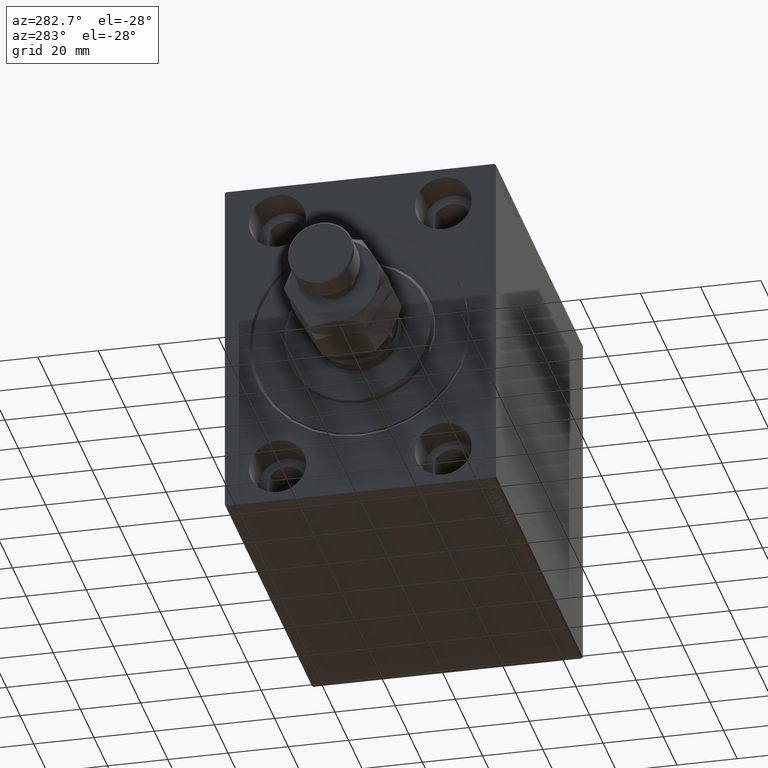
[diagram: clean part render]
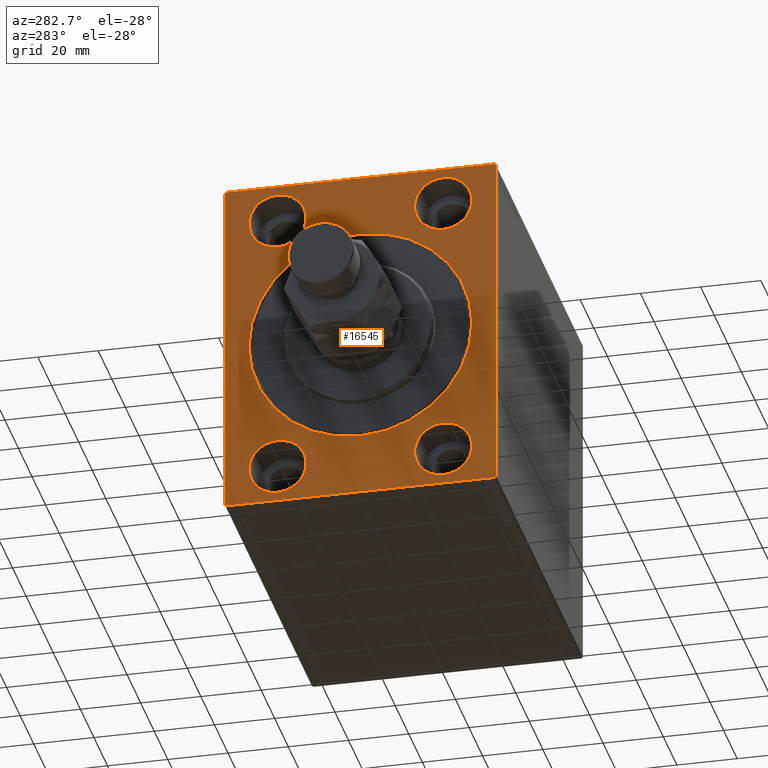
[diagram: same view with one face highlighted and labeled with its STEP entity id]
A machine part, auxiliary view. The second image highlights one B-rep face of the part: STEP entity #16545.
In plain terms, the highlighted planar face has unit normal (1, 0, 0).
Its self-contained STEP definition (entity closure, byte-faithful):
#292 = AXIS2_PLACEMENT_3D ( 'NONE', #9441, #20272, #23465 ) ;
#470 = EDGE_LOOP ( 'NONE', ( #8806, #19407 ) ) ;
#543 = DIRECTION ( 'NONE',  ( -1.000000000000000000, 0.000000000000000000, 0.000000000000000000 ) ) ;
#783 = VECTOR ( 'NONE', #28798, 1000.000000000000000 ) ;
#882 = EDGE_CURVE ( 'NONE', #24466, #17183, #27310, .T. ) ;
#917 = CIRCLE ( 'NONE', #33952, 37.00000000000000711 ) ;
#956 = LINE ( 'NONE', #39339, #783 ) ;
#1502 = DIRECTION ( 'NONE',  ( 1.000000000000000000, 0.000000000000000000, 0.000000000000000000 ) ) ;
#1804 = CARTESIAN_POINT ( 'NONE',  ( 0.000000000000000000, 44.50000000000000000, 57.50000000000000711 ) ) ;
#1849 = CARTESIAN_POINT ( 'NONE',  ( 0.000000000000000000, -27.50000000000000000, -44.99999999999998579 ) ) ;
#2384 = CARTESIAN_POINT ( 'NONE',  ( 0.000000000000000000, 27.50000000000001066, 54.50000000000000711 ) ) ;
#2912 = DIRECTION ( 'NONE',  ( 0.000000000000000000, -0.7071067811865279218, -0.7071067811865671127 ) ) ;
#3373 = CARTESIAN_POINT ( 'NONE',  ( 0.000000000000000000, 45.00000000000001421, -57.00000000000000711 ) ) ;
#3547 = DIRECTION ( 'NONE',  ( 0.000000000000000000, 0.000000000000000000, 1.000000000000000000 ) ) ;
#3865 = CARTESIAN_POINT ( 'NONE',  ( 0.000000000000000000, -45.00000000000000000, -57.50000000000000711 ) ) ;
#4017 = EDGE_CURVE ( 'NONE', #22240, #43699, #12164, .T. ) ;
#4307 = EDGE_LOOP ( 'NONE', ( #22236, #33594, #11161, #6860, #18402, #30886, #10931, #40392 ) ) ;
#4416 = EDGE_CURVE ( 'NONE', #22240, #37407, #956, .T. ) ;
#4546 = VECTOR ( 'NONE', #32942, 1000.000000000000114 ) ;
#4625 = DIRECTION ( 'NONE',  ( 0.000000000000000000, 0.000000000000000000, 1.000000000000000000 ) ) ;
#4808 = DIRECTION ( 'NONE',  ( -0.000000000000000000, 0.7071067811865671127, -0.7071067811865279218 ) ) ;
#5955 = EDGE_LOOP ( 'NONE', ( #21934, #21179 ) ) ;
#6246 = EDGE_LOOP ( 'NONE', ( #7200, #30012 ) ) ;
#6381 = PLANE ( 'NONE',  #32591 ) ;
#6445 = EDGE_CURVE ( 'NONE', #33342, #26169, #35341, .T. ) ;
#6840 = FACE_OUTER_BOUND ( 'NONE', #4307, .T. ) ;
#6860 = ORIENTED_EDGE ( 'NONE', *, *, #4017, .T. ) ;
#7200 = ORIENTED_EDGE ( 'NONE', *, *, #18276, .F. ) ;
#8005 = DIRECTION ( 'NONE',  ( -1.000000000000000000, 0.000000000000000000, 0.000000000000000000 ) ) ;
#8131 = CARTESIAN_POINT ( 'NONE',  ( 0.000000000000000000, -45.00000000000000000, 56.99999999999999289 ) ) ;
#8173 = EDGE_CURVE ( 'NONE', #24466, #27444, #35355, .T. ) ;
#8791 = VERTEX_POINT ( 'NONE', #28817 ) ;
#8806 = ORIENTED_EDGE ( 'NONE', *, *, #9933, .F. ) ;
#8908 = CARTESIAN_POINT ( 'NONE',  ( 0.000000000000000000, 27.49999999999998934, -54.49999999999998579 ) ) ;
#8916 = VECTOR ( 'NONE', #23629, 1000.000000000000000 ) ;
#8939 = CIRCLE ( 'NONE', #22133, 9.500000000000001776 ) ;
#9027 = CARTESIAN_POINT ( 'NONE',  ( 0.000000000000000000, 27.50000000000001066, 45.00000000000000711 ) ) ;
#9386 = CIRCLE ( 'NONE', #36526, 37.00000000000000711 ) ;
#9441 = CARTESIAN_POINT ( 'NONE',  ( 0.000000000000000000, -27.50000000000000000, -44.99999999999998579 ) ) ;
#9910 = CARTESIAN_POINT ( 'NONE',  ( 0.000000000000000000, -27.50000000000000000, -54.49999999999998579 ) ) ;
#9933 = EDGE_CURVE ( 'NONE', #28563, #44683, #44131, .T. ) ;
#10086 = EDGE_CURVE ( 'NONE', #10747, #23612, #8939, .T. ) ;
#10318 = DIRECTION ( 'NONE',  ( 0.000000000000000000, 1.000000000000000000, 0.000000000000000000 ) ) ;
#10747 = VERTEX_POINT ( 'NONE', #8908 ) ;
#10931 = ORIENTED_EDGE ( 'NONE', *, *, #8173, .F. ) ;
#11161 = ORIENTED_EDGE ( 'NONE', *, *, #4416, .F. ) ;
#11743 = DIRECTION ( 'NONE',  ( -1.000000000000000000, 0.000000000000000000, 0.000000000000000000 ) ) ;
#12164 = LINE ( 'NONE', #1804, #16971 ) ;
#12219 = CARTESIAN_POINT ( 'NONE',  ( 0.000000000000000000, 45.00000000000000000, 57.00000000000000711 ) ) ;
#13038 = CARTESIAN_POINT ( 'NONE',  ( 0.000000000000000000, 45.00000000000001421, -57.50000000000000711 ) ) ;
#13501 = FACE_BOUND ( 'NONE', #5955, .T. ) ;
#13992 = CARTESIAN_POINT ( 'NONE',  ( 0.000000000000000000, 44.50000000000000000, 57.50000000000000711 ) ) ;
#14154 = VERTEX_POINT ( 'NONE', #9910 ) ;
#14888 = ORIENTED_EDGE ( 'NONE', *, *, #42539, .T. ) ;
#15895 = DIRECTION ( 'NONE',  ( -1.000000000000000000, 0.000000000000000000, 0.000000000000000000 ) ) ;
#16280 = AXIS2_PLACEMENT_3D ( 'NONE', #9027, #26040, #43948 ) ;
#16320 = VERTEX_POINT ( 'NONE', #41630 ) ;
#16473 = EDGE_CURVE ( 'NONE', #16320, #27444, #30974, .T. ) ;
#16545 = ADVANCED_FACE ( 'NONE', ( #24302, #13501, #34409, #37857, #38307, #6840 ), #6381, .F. ) ;
#16971 = VECTOR ( 'NONE', #4808, 1000.000000000000000 ) ;
#17183 = VERTEX_POINT ( 'NONE', #21436 ) ;
#17197 = VECTOR ( 'NONE', #2912, 1000.000000000000000 ) ;
#17318 = CARTESIAN_POINT ( 'NONE',  ( 0.000000000000000000, -44.50000000000002842, -57.50000000000000711 ) ) ;
#17957 = CARTESIAN_POINT ( 'NONE',  ( 0.000000000000000000, -44.49999999999997158, 57.49999999999999289 ) ) ;
#17962 = CARTESIAN_POINT ( 'NONE',  ( 0.000000000000000000, -27.49999999999998934, 35.50000000000000711 ) ) ;
#18276 = EDGE_CURVE ( 'NONE', #41745, #14154, #31874, .T. ) ;
#18402 = ORIENTED_EDGE ( 'NONE', *, *, #37951, .F. ) ;
#19407 = ORIENTED_EDGE ( 'NONE', *, *, #35605, .F. ) ;
#19759 = EDGE_LOOP ( 'NONE', ( #14888, #45524 ) ) ;
#20245 = CARTESIAN_POINT ( 'NONE',  ( 0.000000000000000000, 27.49999999999998934, -44.99999999999998579 ) ) ;
#20272 = DIRECTION ( 'NONE',  ( -1.000000000000000000, 0.000000000000000000, 0.000000000000000000 ) ) ;
#20357 = CARTESIAN_POINT ( 'NONE',  ( 0.000000000000000000, -45.00000000000000000, 57.49999999999999289 ) ) ;
#20486 = CARTESIAN_POINT ( 'NONE',  ( 0.000000000000000000, -27.49999999999998934, 45.00000000000000711 ) ) ;
#20882 = DIRECTION ( 'NONE',  ( 1.000000000000000000, 0.000000000000000000, 0.000000000000000000 ) ) ;
#21164 = DIRECTION ( 'NONE',  ( -1.000000000000000000, 0.000000000000000000, 0.000000000000000000 ) ) ;
#21179 = ORIENTED_EDGE ( 'NONE', *, *, #10086, .F. ) ;
#21377 = VECTOR ( 'NONE', #41464, 1000.000000000000000 ) ;
#21436 = CARTESIAN_POINT ( 'NONE',  ( 0.000000000000000000, -45.00000000000000000, -57.00000000000003553 ) ) ;
#21598 = DIRECTION ( 'NONE',  ( 0.000000000000000000, 0.000000000000000000, 1.000000000000000000 ) ) ;
#21934 = ORIENTED_EDGE ( 'NONE', *, *, #22280, .F. ) ;
#21997 = DIRECTION ( 'NONE',  ( 1.000000000000000000, 0.000000000000000000, 0.000000000000000000 ) ) ;
#22133 = AXIS2_PLACEMENT_3D ( 'NONE', #24934, #543, #3547 ) ;
#22236 = ORIENTED_EDGE ( 'NONE', *, *, #33702, .F. ) ;
#22240 = VERTEX_POINT ( 'NONE', #13992 ) ;
#22280 = EDGE_CURVE ( 'NONE', #23612, #10747, #34314, .T. ) ;
#22461 = CARTESIAN_POINT ( 'NONE',  ( 0.000000000000000000, 0.000000000000000000, 0.000000000000000000 ) ) ;
#22679 = DIRECTION ( 'NONE',  ( 0.000000000000000000, 0.000000000000000000, -1.000000000000000000 ) ) ;
#22933 = CARTESIAN_POINT ( 'NONE',  ( 0.000000000000000000, 0.000000000000000000, 37.00000000000000711 ) ) ;
#23391 = DIRECTION ( 'NONE',  ( 0.000000000000000000, 0.000000000000000000, -1.000000000000000000 ) ) ;
#23465 = DIRECTION ( 'NONE',  ( 0.000000000000000000, 0.000000000000000000, 1.000000000000000000 ) ) ;
#23528 = ORIENTED_EDGE ( 'NONE', *, *, #34731, .F. ) ;
#23612 = VERTEX_POINT ( 'NONE', #27000 ) ;
#23629 = DIRECTION ( 'NONE',  ( 0.000000000000000000, -1.206764157201257045E-16, 1.000000000000000000 ) ) ;
#24302 = FACE_BOUND ( 'NONE', #19759, .T. ) ;
#24364 = EDGE_CURVE ( 'NONE', #29785, #45123, #9386, .T. ) ;
#24466 = VERTEX_POINT ( 'NONE', #17318 ) ;
#24574 = DIRECTION ( 'NONE',  ( 0.000000000000000000, 0.000000000000000000, 1.000000000000000000 ) ) ;
#24934 = CARTESIAN_POINT ( 'NONE',  ( 0.000000000000000000, 27.49999999999998934, -44.99999999999998579 ) ) ;
#25219 = CARTESIAN_POINT ( 'NONE',  ( 0.000000000000000000, -27.50000000000000000, -35.49999999999998579 ) ) ;
#25724 = VECTOR ( 'NONE', #10318, 1000.000000000000000 ) ;
#26040 = DIRECTION ( 'NONE',  ( -1.000000000000000000, 0.000000000000000000, 0.000000000000000000 ) ) ;
#26169 = VERTEX_POINT ( 'NONE', #2384 ) ;
#26270 = CARTESIAN_POINT ( 'NONE',  ( 0.000000000000000000, 0.000000000000000000, 0.000000000000000000 ) ) ;
#27000 = CARTESIAN_POINT ( 'NONE',  ( 0.000000000000000000, 27.49999999999998934, -35.49999999999998579 ) ) ;
#27310 = LINE ( 'NONE', #38088, #30801 ) ;
#27444 = VERTEX_POINT ( 'NONE', #29096 ) ;
#27529 = CARTESIAN_POINT ( 'NONE',  ( 0.000000000000000000, 0.000000000000000000, 0.000000000000000000 ) ) ;
#28563 = VERTEX_POINT ( 'NONE', #33165 ) ;
#28798 = DIRECTION ( 'NONE',  ( 0.000000000000000000, -1.000000000000000000, -1.541976423090495387E-16 ) ) ;
#28817 = CARTESIAN_POINT ( 'NONE',  ( 0.000000000000000000, -45.00000000000000000, 56.99999999999999289 ) ) ;
#28931 = CARTESIAN_POINT ( 'NONE',  ( 0.000000000000000000, 27.50000000000001066, 45.00000000000000711 ) ) ;
#29096 = CARTESIAN_POINT ( 'NONE',  ( 0.000000000000000000, 44.50000000000001421, -57.50000000000000711 ) ) ;
#29478 = AXIS2_PLACEMENT_3D ( 'NONE', #36331, #11743, #4625 ) ;
#29511 = AXIS2_PLACEMENT_3D ( 'NONE', #1849, #15895, #29899 ) ;
#29785 = VERTEX_POINT ( 'NONE', #33483 ) ;
#29899 = DIRECTION ( 'NONE',  ( 0.000000000000000000, 0.000000000000000000, 1.000000000000000000 ) ) ;
#30012 = ORIENTED_EDGE ( 'NONE', *, *, #40536, .F. ) ;
#30505 = LINE ( 'NONE', #13038, #8916 ) ;
#30668 = LINE ( 'NONE', #20357, #21377 ) ;
#30801 = VECTOR ( 'NONE', #34659, 1000.000000000000114 ) ;
#30886 = ORIENTED_EDGE ( 'NONE', *, *, #16473, .T. ) ;
#30964 = CARTESIAN_POINT ( 'NONE',  ( 0.000000000000000000, 27.50000000000001066, 35.50000000000000711 ) ) ;
#30974 = LINE ( 'NONE', #3373, #17197 ) ;
#31874 = CIRCLE ( 'NONE', #292, 9.500000000000001776 ) ;
#32591 = AXIS2_PLACEMENT_3D ( 'NONE', #27529, #20882, #23391 ) ;
#32901 = ORIENTED_EDGE ( 'NONE', *, *, #6445, .F. ) ;
#32942 = DIRECTION ( 'NONE',  ( -0.000000000000000000, 0.7071067811865474617, 0.7071067811865474617 ) ) ;
#33165 = CARTESIAN_POINT ( 'NONE',  ( 0.000000000000000000, -27.49999999999998934, 54.50000000000000711 ) ) ;
#33342 = VERTEX_POINT ( 'NONE', #30964 ) ;
#33483 = CARTESIAN_POINT ( 'NONE',  ( 0.000000000000000000, 4.531193156845207581E-15, -37.00000000000000711 ) ) ;
#33594 = ORIENTED_EDGE ( 'NONE', *, *, #35430, .T. ) ;
#33702 = EDGE_CURVE ( 'NONE', #8791, #17183, #30668, .T. ) ;
#33925 = CIRCLE ( 'NONE', #29478, 9.500000000000001776 ) ;
#33952 = AXIS2_PLACEMENT_3D ( 'NONE', #22461, #1502, #22679 ) ;
#34232 = DIRECTION ( 'NONE',  ( -1.000000000000000000, 0.000000000000000000, 0.000000000000000000 ) ) ;
#34314 = CIRCLE ( 'NONE', #40889, 9.500000000000001776 ) ;
#34409 = FACE_BOUND ( 'NONE', #470, .T. ) ;
#34659 = DIRECTION ( 'NONE',  ( -0.000000000000000000, -0.7071067811865474617, 0.7071067811865474617 ) ) ;
#34731 = EDGE_CURVE ( 'NONE', #26169, #33342, #37517, .T. ) ;
#35341 = CIRCLE ( 'NONE', #40478, 9.500000000000001776 ) ;
#35355 = LINE ( 'NONE', #3865, #25724 ) ;
#35430 = EDGE_CURVE ( 'NONE', #8791, #37407, #40269, .T. ) ;
#35605 = EDGE_CURVE ( 'NONE', #44683, #28563, #33925, .T. ) ;
#36331 = CARTESIAN_POINT ( 'NONE',  ( 0.000000000000000000, -27.49999999999998934, 45.00000000000000711 ) ) ;
#36526 = AXIS2_PLACEMENT_3D ( 'NONE', #26270, #21997, #42664 ) ;
#37407 = VERTEX_POINT ( 'NONE', #17957 ) ;
#37517 = CIRCLE ( 'NONE', #16280, 9.500000000000001776 ) ;
#37857 = FACE_BOUND ( 'NONE', #44557, .T. ) ;
#37951 = EDGE_CURVE ( 'NONE', #16320, #43699, #30505, .T. ) ;
#38088 = CARTESIAN_POINT ( 'NONE',  ( 0.000000000000000000, -44.50000000000002842, -57.50000000000000711 ) ) ;
#38307 = FACE_BOUND ( 'NONE', #6246, .T. ) ;
#39339 = CARTESIAN_POINT ( 'NONE',  ( 0.000000000000000000, 45.00000000000000000, 57.50000000000000711 ) ) ;
#40269 = LINE ( 'NONE', #8131, #4546 ) ;
#40392 = ORIENTED_EDGE ( 'NONE', *, *, #882, .T. ) ;
#40441 = AXIS2_PLACEMENT_3D ( 'NONE', #20486, #21164, #45059 ) ;
#40478 = AXIS2_PLACEMENT_3D ( 'NONE', #28931, #8005, #21598 ) ;
#40536 = EDGE_CURVE ( 'NONE', #14154, #41745, #42728, .T. ) ;
#40889 = AXIS2_PLACEMENT_3D ( 'NONE', #20245, #34232, #24574 ) ;
#41464 = DIRECTION ( 'NONE',  ( 0.000000000000000000, 0.000000000000000000, -1.000000000000000000 ) ) ;
#41630 = CARTESIAN_POINT ( 'NONE',  ( 0.000000000000000000, 45.00000000000001421, -57.00000000000000711 ) ) ;
#41745 = VERTEX_POINT ( 'NONE', #25219 ) ;
#42539 = EDGE_CURVE ( 'NONE', #45123, #29785, #917, .T. ) ;
#42664 = DIRECTION ( 'NONE',  ( 0.000000000000000000, 0.000000000000000000, -1.000000000000000000 ) ) ;
#42728 = CIRCLE ( 'NONE', #29511, 9.500000000000001776 ) ;
#43699 = VERTEX_POINT ( 'NONE', #12219 ) ;
#43948 = DIRECTION ( 'NONE',  ( 0.000000000000000000, 0.000000000000000000, 1.000000000000000000 ) ) ;
#44131 = CIRCLE ( 'NONE', #40441, 9.500000000000001776 ) ;
#44557 = EDGE_LOOP ( 'NONE', ( #23528, #32901 ) ) ;
#44683 = VERTEX_POINT ( 'NONE', #17962 ) ;
#45059 = DIRECTION ( 'NONE',  ( 0.000000000000000000, 0.000000000000000000, 1.000000000000000000 ) ) ;
#45123 = VERTEX_POINT ( 'NONE', #22933 ) ;
#45524 = ORIENTED_EDGE ( 'NONE', *, *, #24364, .T. ) ;